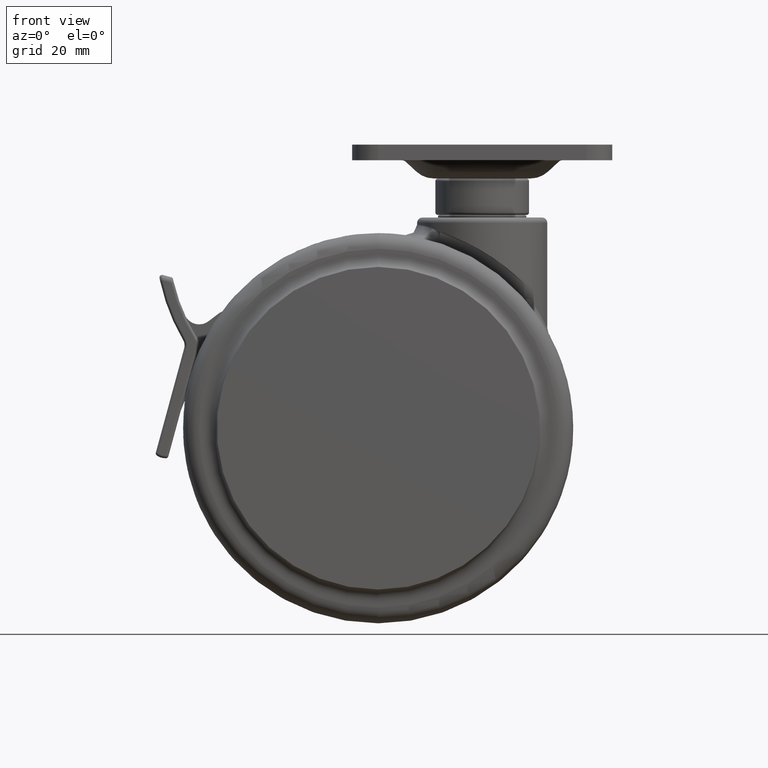
[diagram: clean part render]
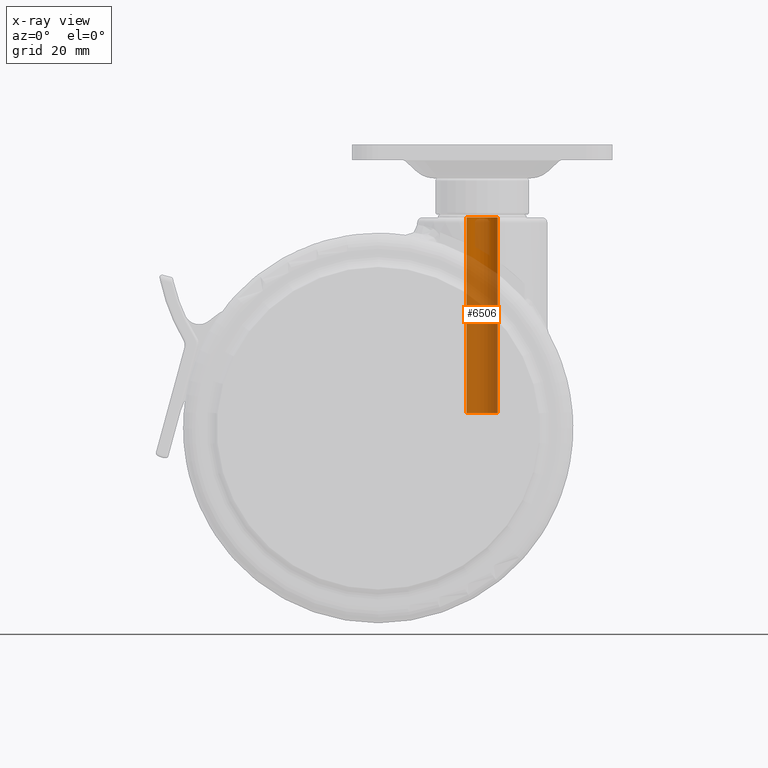
[diagram: x-ray — body ghosted, one internal face saturated and labeled with its STEP entity id]
A machine part, front view, then the same camera in x-ray: the body is ghosted and one INTERNAL B-rep face — a face not visible from any outside direction — is saturated and labeled: STEP entity #6506.
In plain terms, the highlighted cylindrical surface (edge-blend (fillet) strip) has radius 3 mm, axis along (0, 0, 1).
Its self-contained STEP definition (entity closure, byte-faithful):
#62 = CYLINDRICAL_SURFACE ( 'NONE', #5588, 3.000000000000000000 ) ;
#252 = DIRECTION ( 'NONE',  ( 0.0000000000000000000, 0.0000000000000000000, 1.000000000000000000 ) ) ;
#277 = CIRCLE ( 'NONE', #6176, 3.000000000000000000 ) ;
#361 = VERTEX_POINT ( 'NONE', #6599 ) ;
#554 = DIRECTION ( 'NONE',  ( -0.0000000000000000000, -0.0000000000000000000, 1.000000000000000000 ) ) ;
#832 = EDGE_CURVE ( 'NONE', #8332, #361, #2979, .T. ) ;
#1578 = DIRECTION ( 'NONE',  ( 1.000000000000000000, 0.0000000000000000000, 0.0000000000000000000 ) ) ;
#1829 = AXIS2_PLACEMENT_3D ( 'NONE', #4781, #554, #5461 ) ;
#1916 = FACE_OUTER_BOUND ( 'NONE', #8890, .T. ) ;
#2202 = CARTESIAN_POINT ( 'NONE',  ( 0.0000000000000000000, 2.842170943040399500E-014, -37.61339081420354800 ) ) ;
#2599 = CARTESIAN_POINT ( 'NONE',  ( -3.000000000000000000, 2.878910347014820000E-014, -1000.000000000000000 ) ) ;
#2631 = CARTESIAN_POINT ( 'NONE',  ( -3.000000000000000000, 2.878910347014820000E-014, -37.61339081420354800 ) ) ;
#2847 = ORIENTED_EDGE ( 'NONE', *, *, #3197, .T. ) ;
#2925 = DIRECTION ( 'NONE',  ( -1.000000000000000000, 0.0000000000000000000, 0.0000000000000000000 ) ) ;
#2979 = LINE ( 'NONE', #2599, #4628 ) ;
#3197 = EDGE_CURVE ( 'NONE', #8572, #361, #7441, .T. ) ;
#3448 = LINE ( 'NONE', #5158, #6935 ) ;
#4382 = CARTESIAN_POINT ( 'NONE',  ( 3.000000000000000000, 2.842170943040399500E-014, 0.0000000000000000000 ) ) ;
#4441 = ORIENTED_EDGE ( 'NONE', *, *, #5474, .T. ) ;
#4628 = VECTOR ( 'NONE', #6796, 1000.000000000000000 ) ;
#4781 = CARTESIAN_POINT ( 'NONE',  ( 0.0000000000000000000, 2.842170943040399500E-014, 0.0000000000000000000 ) ) ;
#5158 = CARTESIAN_POINT ( 'NONE',  ( 3.000000000000000000, 2.842170943040399500E-014, -1000.000000000000000 ) ) ;
#5461 = DIRECTION ( 'NONE',  ( -1.000000000000000000, 0.0000000000000000000, 0.0000000000000000000 ) ) ;
#5474 = EDGE_CURVE ( 'NONE', #6661, #8572, #3448, .T. ) ;
#5588 = AXIS2_PLACEMENT_3D ( 'NONE', #7901, #8635, #1578 ) ;
#5623 = ORIENTED_EDGE ( 'NONE', *, *, #832, .F. ) ;
#6176 = AXIS2_PLACEMENT_3D ( 'NONE', #2202, #7116, #2925 ) ;
#6506 = ADVANCED_FACE ( 'NONE', ( #1916 ), #62, .F. ) ;
#6599 = CARTESIAN_POINT ( 'NONE',  ( -3.000000000000000000, 2.878910347014820000E-014, 0.0000000000000000000 ) ) ;
#6661 = VERTEX_POINT ( 'NONE', #8091 ) ;
#6789 = ORIENTED_EDGE ( 'NONE', *, *, #7006, .F. ) ;
#6796 = DIRECTION ( 'NONE',  ( 0.0000000000000000000, 0.0000000000000000000, 1.000000000000000000 ) ) ;
#6935 = VECTOR ( 'NONE', #252, 1000.000000000000000 ) ;
#7006 = EDGE_CURVE ( 'NONE', #6661, #8332, #277, .T. ) ;
#7116 = DIRECTION ( 'NONE',  ( -0.0000000000000000000, -0.0000000000000000000, 1.000000000000000000 ) ) ;
#7441 = CIRCLE ( 'NONE', #1829, 3.000000000000000000 ) ;
#7901 = CARTESIAN_POINT ( 'NONE',  ( 0.0000000000000000000, 2.842170943040399500E-014, -1000.000000000000000 ) ) ;
#8091 = CARTESIAN_POINT ( 'NONE',  ( 3.000000000000000000, 2.842170943040399500E-014, -37.61339081420354800 ) ) ;
#8332 = VERTEX_POINT ( 'NONE', #2631 ) ;
#8572 = VERTEX_POINT ( 'NONE', #4382 ) ;
#8635 = DIRECTION ( 'NONE',  ( 0.0000000000000000000, 0.0000000000000000000, 1.000000000000000000 ) ) ;
#8890 = EDGE_LOOP ( 'NONE', ( #5623, #6789, #4441, #2847 ) ) ;